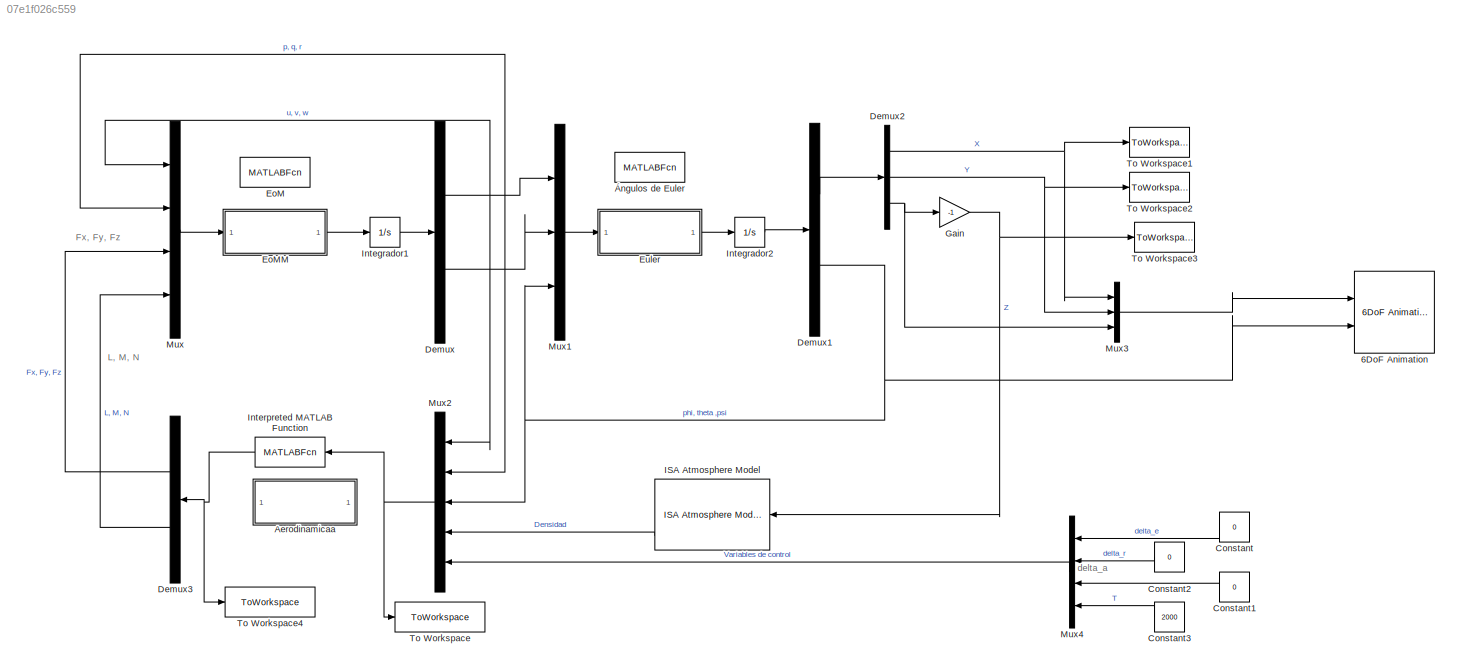
MODEL slx_07e1f026c559
KIND model
CONFIG AbsTol = auto
CONFIG EnableMultiTasking = on
CONFIG FixedStep = 0.001
CONFIG MaxStep = auto
CONFIG MinStep = auto
CONFIG PreLoadFcn = codigos
CONFIG RelTol = 1e-3
CONFIG SampleTimeConstraint = Unconstrained
CONFIG SolverName = VariableStepAuto
CONFIG StartTime = 0.0
CONFIG StopTime = 10
BLOCK [Reference] 6DoF Animation  REF=aerolibanim/6DoF Animation
  Ports = [2]
  SourceBlock = aerolibanim/6DoF Animation
  SourceProductBaseCode = AE
  SourceType = 6DoF_Animation
BLOCK [SubSystem] Aerodinamicaa
  Commented = on
  Ports = [1, 1]
  ReferencedSubsystem = Aerodinamicaa
  RequestExecContextInheritance = off
BLOCK [Constant] Constant
  NameLocation = top
  Value = 0
BLOCK [Constant] Constant1
  NameLocation = top
  Value = 0
BLOCK [Constant] Constant2
  NameLocation = top
  Value = 0
BLOCK [Constant] Constant3
  NameLocation = top
  Value = 2000
BLOCK [Demux] Demux
  Outputs = 2
  Ports = [1, 2]
BLOCK [Demux] Demux1
  Outputs = 2
  Ports = [1, 2]
BLOCK [Demux] Demux2
  Outputs = 3
  Ports = [1, 3]
BLOCK [Demux] Demux3
  NameLocation = top
  Outputs = 2
  Ports = [1, 2]
BLOCK [MATLABFcn] EoM
  Commented = on
  MATLABFcn = eom
  OutputDimensions = 6
  Ports = [1, 1]
BLOCK [SubSystem] EoMM
  Ports = [1, 1]
  ReferencedSubsystem = EoMM
  RequestExecContextInheritance = off
BLOCK [SubSystem] Euler
  Ports = [1, 1]
  ReferencedSubsystem = Eulerr
  RequestExecContextInheritance = off
BLOCK [Gain] Gain
  Gain = -1
BLOCK [Reference] ISA Atmosphere Model  REF=aerolibatmos2/ISA Atmosphere Model
  NameLocation = top
  Ports = [1, 4]
  SourceBlock = aerolibatmos2/ISA Atmosphere Model
  SourceProductBaseCode = AE
  SourceType = International Standard Atmosphere Model
BLOCK [Integrator] Integrador1
  InitialCondition = [0.001,0,0,0,0,0]
  Ports = [1, 1]
BLOCK [Integrator] Integrador2
  DeleteFcn = slcm Cancel;
  InitialCondition = [0,0,2000,0,pi/4,0]
  NameChangeFcn = slcm Rename;
  Ports = [1, 1]
BLOCK [MATLABFcn] Interpreted MATLAB Function
  MATLABFcn = aerodinamica
  NameLocation = top
  OutputDimensions = 6
  Ports = [1, 1]
BLOCK [Mux] Mux
  DisplayOption = bar
  Ports = [4, 1]
BLOCK [Mux] Mux1
  DisplayOption = bar
  Inputs = 3
  Ports = [3, 1]
BLOCK [Mux] Mux2
  DisplayOption = bar
  Inputs = 5
  Ports = [5, 1]
BLOCK [Mux] Mux3
  DisplayOption = bar
  Inputs = 3
  Ports = [3, 1]
BLOCK [Mux] Mux4
  DisplayOption = bar
  NameLocation = top
  Ports = [4, 1]
BLOCK [ToWorkspace] To Workspace
  FixptAsFi = on
  MaxDataPoints = inf
  Ports = [1]
  SampleTime = -1
  SaveFormat = Structure With Time
  VariableName = entradaaerodinamica
BLOCK [ToWorkspace] To Workspace1
  MaxDataPoints = inf
  Ports = [1]
  SampleTime = -1
  VariableName = x
BLOCK [ToWorkspace] To Workspace2
  MaxDataPoints = inf
  Ports = [1]
  SampleTime = -1
  VariableName = y
BLOCK [ToWorkspace] To Workspace3
  MaxDataPoints = inf
  Ports = [1]
  SampleTime = -1
  VariableName = z
BLOCK [ToWorkspace] To Workspace4
  FixptAsFi = on
  MaxDataPoints = inf
  Ports = [1]
  SampleTime = -1
  SaveFormat = Structure With Time
  VariableName = salidaaerodinamica
BLOCK [MATLABFcn] Ángulos de Euler
  Commented = on
  MATLABFcn = vel_euler
  OutputDimensions = 6
  Ports = [1, 1]
ANNOTATION (root): Fx, Fy, Fz
ANNOTATION (root): L, M, N
ANNOTATION (root): delta_a
LINE Constant1:1 -> Mux4:3
LINE Constant2:1 -> Mux4:2
LINE Constant3:1 -> Mux4:4
LINE Constant:1 -> Mux4:1
LINE Demux1:1 -> Demux2:1
NET Demux1:2 -> 6DoF Animation:2, Mux1:3, Mux2:3
NET Demux2:1 -> Mux3:1, To Workspace1:1
NET Demux2:2 -> Mux3:2, To Workspace2:1
NET Demux2:3 -> Gain:1, Mux3:3
LINE Demux3:1 -> Mux:3
LINE Demux3:2 -> Mux:4
NET Demux:1 -> Mux1:1, Mux2:1, Mux:1
NET Demux:2 -> Mux1:2, Mux2:2, Mux:2
LINE EoMM:1 -> Integrador1:1
LINE Euler:1 -> Integrador2:1
NET Gain:1 -> ISA Atmosphere Model:1, To Workspace3:1
LINE ISA Atmosphere Model:4 -> Mux2:4
LINE Integrador1:1 -> Demux:1
LINE Integrador2:1 -> Demux1:1
NET Interpreted MATLAB Function:1 -> Demux3:1, To Workspace4:1
LINE Mux1:1 -> Euler:1
NET Mux2:1 -> Interpreted MATLAB Function:1, To Workspace:1
LINE Mux3:1 -> 6DoF Animation:1
LINE Mux4:1 -> Mux2:5
LINE Mux:1 -> EoMM:1
note: NET lines group one-source signal fan-out (src -> all destinations, sorted); 1:1 wires keep LINE
